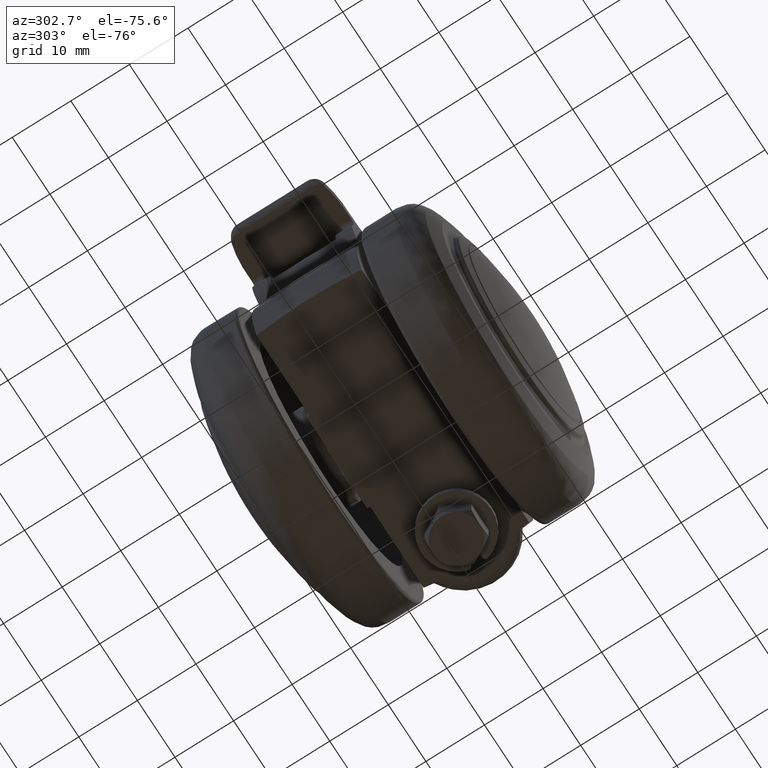
[diagram: clean part render]
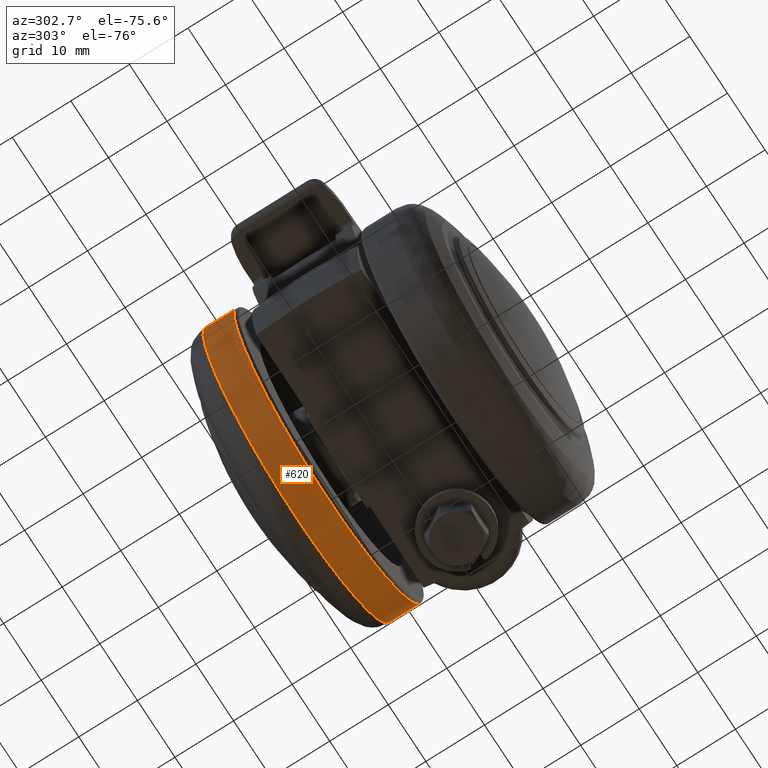
[diagram: same view with one face highlighted and labeled with its STEP entity id]
A machine part, auxiliary view. The second image highlights one B-rep face of the part: STEP entity #620.
In plain terms, the highlighted face is a freeform B-spline surface patch.
Its self-contained STEP definition (entity closure, byte-faithful):
#420=CARTESIAN_POINT('',(-24.456277193517327,-10.866386224979012,5.185605638095166));
#421=CARTESIAN_POINT('',(-27.125405001298383,-10.866386224979012,-7.402495750192665));
#422=CARTESIAN_POINT('',(-18.431933420253088,-10.866386224979010,-16.889755190391501));
#423=CARTESIAN_POINT('',(-1.542178229861583,-10.866386224979012,-35.321688610644600));
#424=CARTESIAN_POINT('',(16.889755190391512,-10.866386224979010,-18.431933420253088));
#425=CARTESIAN_POINT('',(35.321688610644600,-10.866386224979012,-1.542178229861581));
#426=CARTESIAN_POINT('',(18.431933420253088,-10.866386224979010,16.889755190391512));
#427=CARTESIAN_POINT('',(1.542178229861583,-10.866386224979012,35.321688610644600));
#428=CARTESIAN_POINT('',(-16.889755190391512,-10.866386224979010,18.431933420253099));
#429=CARTESIAN_POINT('',(-24.456277193517327,-16.481505119420238,5.185605638095166));
#430=CARTESIAN_POINT('',(-27.125405001298383,-16.481505119420234,-7.402495750192665));
#431=CARTESIAN_POINT('',(-18.431933420253088,-16.481505119420230,-16.889755190391501));
#432=CARTESIAN_POINT('',(-1.542178229861583,-16.481505119420238,-35.321688610644600));
#433=CARTESIAN_POINT('',(16.889755190391512,-16.481505119420230,-18.431933420253088));
#434=CARTESIAN_POINT('',(35.321688610644600,-16.481505119420238,-1.542178229861581));
#435=CARTESIAN_POINT('',(18.431933420253088,-16.481505119420230,16.889755190391512));
#436=CARTESIAN_POINT('',(1.542178229861583,-16.481505119420238,35.321688610644600));
#437=CARTESIAN_POINT('',(-16.889755190391512,-16.481505119420230,18.431933420253099));
#445=(BOUNDED_SURFACE()B_SPLINE_SURFACE(2,1,((#420,#429),(#421,#430),(#422,#431),(#423,#432),(#424,#433),(#425,#434),(#426,#435),(#427,#436),(#428,#437)),.UNSPECIFIED.,.F.,.F.,.U.)B_SPLINE_SURFACE_WITH_KNOTS((3,2,2,2,3),(2,2),(0.0,24.852813742385699,66.274169979695202,107.695526217004700,149.116882454314210),(0.0,5.615118894441225),.UNSPECIFIED.)GEOMETRIC_REPRESENTATION_ITEM()RATIONAL_B_SPLINE_SURFACE(((0.859411254969543,0.859411254969543),(0.824264068711928,0.824264068711928),(1.0,1.0),(0.707106781186548,0.707106781186548),(1.0,1.0),(0.707106781186548,0.707106781186548),(1.0,1.0),(0.707106781186548,0.707106781186548),(1.0,1.0)))REPRESENTATION_ITEM('')SURFACE());
#446=CARTESIAN_POINT('',(-24.456279230578431,-10.999999999984270,5.185596030918193));
#447=VERTEX_POINT('',#446);
#448=CARTESIAN_POINT('',(-24.998026105095381,-10.999999999980590,0.314150997085621));
#449=VERTEX_POINT('',#448);
#450=CARTESIAN_POINT('',(-24.456279230578424,-10.999999999984267,5.185596030918193));
#451=CARTESIAN_POINT('',(-24.967080987086984,-10.999999999982521,2.776555620883773));
#452=CARTESIAN_POINT('',(-24.998026105095381,-10.999999999980584,0.314150997085621));
#460=(BOUNDED_CURVE()B_SPLINE_CURVE(2,(#450,#451,#452),.UNSPECIFIED.,.F.,.U.)B_SPLINE_CURVE_WITH_KNOTS((3,3),(0.714472189737189,0.747784295921702),.UNSPECIFIED.)CURVE()GEOMETRIC_REPRESENTATION_ITEM()RATIONAL_B_SPLINE_CURVE((0.928583473768771,0.956518523811881,0.994854295643953))REPRESENTATION_ITEM(''));
#461=EDGE_CURVE('',#447,#449,#460,.T.);
#462=ORIENTED_EDGE('',*,*,#461,.T.);
#463=CARTESIAN_POINT('',(0.0,-11.0,-25.0));
#464=VERTEX_POINT('',#463);
#465=CARTESIAN_POINT('',(-24.998026105095377,-10.999999999980590,0.314150997085621));
#466=CARTESIAN_POINT('',(-25.0,-10.999999999999996,0.157081699799057));
#467=CARTESIAN_POINT('',(-25.0,-11.0,1.789254E-015));
#468=CARTESIAN_POINT('',(-25.000000000000004,-11.0,-25.000000000000004));
#469=CARTESIAN_POINT('',(0.0,-11.0,-25.0));
#477=(BOUNDED_CURVE()B_SPLINE_CURVE(2,(#465,#466,#467,#468,#469),.UNSPECIFIED.,.F.,.U.)B_SPLINE_CURVE_WITH_KNOTS((3,2,3),(0.747784295921703,0.750000000000000,1.0),.UNSPECIFIED.)CURVE()GEOMETRIC_REPRESENTATION_ITEM()RATIONAL_B_SPLINE_CURVE((0.994854295643954,0.997404141202278,1.0,0.707106781186547,1.0))REPRESENTATION_ITEM(''));
#478=EDGE_CURVE('',#449,#464,#477,.T.);
#479=ORIENTED_EDGE('',*,*,#478,.T.);
#480=CARTESIAN_POINT('',(24.939141846009090,-10.999999999991950,-1.743331289410664));
#481=VERTEX_POINT('',#480);
#482=CARTESIAN_POINT('',(0.0,-11.0,-25.0));
#483=CARTESIAN_POINT('',(23.313421181619347,-10.999999999999998,-25.0));
#484=CARTESIAN_POINT('',(24.939141846009086,-10.999999999991946,-1.743331289410665));
#492=(BOUNDED_CURVE()B_SPLINE_CURVE(2,(#482,#483,#484),.UNSPECIFIED.,.F.,.U.)B_SPLINE_CURVE_WITH_KNOTS((3,3),(0.0,0.237833686534795),.UNSPECIFIED.)CURVE()GEOMETRIC_REPRESENTATION_ITEM()RATIONAL_B_SPLINE_CURVE((1.0,0.721360504034217,0.972879876386349))REPRESENTATION_ITEM(''));
#493=EDGE_CURVE('',#464,#481,#492,.T.);
#494=ORIENTED_EDGE('',*,*,#493,.T.);
#495=CARTESIAN_POINT('',(0.0,-11.0,25.0));
#496=VERTEX_POINT('',#495);
#497=CARTESIAN_POINT('',(24.939141846009090,-10.999999999991950,-1.743331289410664));
#498=CARTESIAN_POINT('',(25.000000000000007,-11.000000000000004,-0.872727896892503));
#499=CARTESIAN_POINT('',(25.0,-11.0,1.789254E-015));
#500=CARTESIAN_POINT('',(25.000000000000004,-11.0,25.000000000000004));
#501=CARTESIAN_POINT('',(0.0,-11.0,25.0));
#509=(BOUNDED_CURVE()B_SPLINE_CURVE(2,(#497,#498,#499,#500,#501),.UNSPECIFIED.,.F.,.U.)B_SPLINE_CURVE_WITH_KNOTS((3,2,3),(0.237833686534795,0.250000000000000,0.500000000000000),.UNSPECIFIED.)CURVE()GEOMETRIC_REPRESENTATION_ITEM()RATIONAL_B_SPLINE_CURVE((0.972879876386348,0.985746277152331,1.0,0.707106781186547,1.0))REPRESENTATION_ITEM(''));
#510=EDGE_CURVE('',#481,#496,#509,.T.);
#511=ORIENTED_EDGE('',*,*,#510,.T.);
#512=CARTESIAN_POINT('',(-16.889753796944401,-10.999999999994831,18.431934697111689));
#513=VERTEX_POINT('',#512);
#514=CARTESIAN_POINT('',(0.0,-11.0,25.0));
#515=CARTESIAN_POINT('',(-9.721967208421050,-11.0,25.000000000000004));
#516=CARTESIAN_POINT('',(-16.889753796944404,-10.999999999994825,18.431934697111689));
#524=(BOUNDED_CURVE()B_SPLINE_CURVE(2,(#514,#515,#516),.UNSPECIFIED.,.F.,.U.)B_SPLINE_CURVE_WITH_KNOTS((3,3),(0.500000000000000,0.618415197671539),.UNSPECIFIED.)CURVE()GEOMETRIC_REPRESENTATION_ITEM()RATIONAL_B_SPLINE_CURVE((1.0,0.861267966390207,0.853959782246640))REPRESENTATION_ITEM(''));
#525=EDGE_CURVE('',#496,#513,#524,.T.);
#526=ORIENTED_EDGE('',*,*,#525,.T.);
#527=CARTESIAN_POINT('',(-16.889753813936270,-16.344550999999999,18.431934681541762));
#528=VERTEX_POINT('',#527);
#529=CARTESIAN_POINT('',(-16.889753796944401,-10.999999999994831,18.431934697111689));
#530=CARTESIAN_POINT('',(-16.889753813936270,-16.344550999999999,18.431934681541762));
#531=QUASI_UNIFORM_CURVE('',1,(#529,#530),.UNSPECIFIED.,.F.,.U.);
#532=EDGE_CURVE('',#513,#528,#531,.T.);
#533=ORIENTED_EDGE('',*,*,#532,.T.);
#534=CARTESIAN_POINT('',(0.0,-16.344550999999999,25.0));
#535=VERTEX_POINT('',#534);
#536=CARTESIAN_POINT('',(0.0,-16.344550999999999,25.0));
#537=CARTESIAN_POINT('',(-9.721967221687173,-16.344550999999992,25.000000000000004));
#538=CARTESIAN_POINT('',(-16.889753813936270,-16.344550999999999,18.431934681541751));
#546=(BOUNDED_CURVE()B_SPLINE_CURVE(2,(#536,#537,#538),.UNSPECIFIED.,.F.,.U.)B_SPLINE_CURVE_WITH_KNOTS((3,3),(0.500000000000000,0.618415197810706),.UNSPECIFIED.)CURVE()GEOMETRIC_REPRESENTATION_ITEM()RATIONAL_B_SPLINE_CURVE((1.0,0.861267966227163,0.853959782229462))REPRESENTATION_ITEM(''));
#547=EDGE_CURVE('',#535,#528,#546,.T.);
#548=ORIENTED_EDGE('',*,*,#547,.F.);
#549=CARTESIAN_POINT('',(11.084080773140300,-16.344551000042120,22.408550899478119));
#550=VERTEX_POINT('',#549);
#551=CARTESIAN_POINT('',(11.084080773140304,-16.344551000042117,22.408550899478119));
#552=CARTESIAN_POINT('',(5.844979736167374,-16.344551000000006,25.000000000000007));
#553=CARTESIAN_POINT('',(0.0,-16.344550999999999,25.0));
#561=(BOUNDED_CURVE()B_SPLINE_CURVE(2,(#551,#552,#553),.UNSPECIFIED.,.F.,.U.)B_SPLINE_CURVE_WITH_KNOTS((3,3),(0.424637790836527,0.500000000000000),.UNSPECIFIED.)CURVE()GEOMETRIC_REPRESENTATION_ITEM()RATIONAL_B_SPLINE_CURVE((0.876646594193984,0.911707679924871,1.0))REPRESENTATION_ITEM(''));
#562=EDGE_CURVE('',#550,#535,#561,.T.);
#563=ORIENTED_EDGE('',*,*,#562,.F.);
#564=CARTESIAN_POINT('',(23.005796184146028,-16.344551000043619,-9.784341670931774));
#565=VERTEX_POINT('',#564);
#566=CARTESIAN_POINT('',(23.005796184146028,-16.344551000043623,-9.784341670931774));
#567=CARTESIAN_POINT('',(24.999999999999996,-16.344550999999996,-5.095395998329954));
#568=CARTESIAN_POINT('',(25.0,-16.344550999999999,1.789254E-015));
#569=CARTESIAN_POINT('',(24.999999999999993,-16.344550999999992,15.525233301881846));
#570=CARTESIAN_POINT('',(11.084080773140304,-16.344551000042113,22.408550899478112));
#578=(BOUNDED_CURVE()B_SPLINE_CURVE(2,(#566,#567,#568,#569,#570),.UNSPECIFIED.,.F.,.U.)B_SPLINE_CURVE_WITH_KNOTS((3,2,3),(0.183550134662986,0.250000000000000,0.424637790836528),.UNSPECIFIED.)CURVE()GEOMETRIC_REPRESENTATION_ITEM()RATIONAL_B_SPLINE_CURVE((0.885683713610757,0.922149140206886,1.0,0.795399101261676,0.876646594193984))REPRESENTATION_ITEM(''));
#579=EDGE_CURVE('',#565,#550,#578,.T.);
#580=ORIENTED_EDGE('',*,*,#579,.F.);
#581=CARTESIAN_POINT('',(0.0,-16.344550999999999,-25.0));
#582=VERTEX_POINT('',#581);
#583=CARTESIAN_POINT('',(0.0,-16.344550999999999,-25.0));
#584=CARTESIAN_POINT('',(16.534592203716628,-16.344550999999996,-24.999999999999993));
#585=CARTESIAN_POINT('',(23.005796184146028,-16.344551000043623,-9.784341670931774));
#593=(BOUNDED_CURVE()B_SPLINE_CURVE(2,(#583,#584,#585),.UNSPECIFIED.,.F.,.U.)B_SPLINE_CURVE_WITH_KNOTS((3,3),(0.0,0.183550134662986),.UNSPECIFIED.)CURVE()GEOMETRIC_REPRESENTATION_ITEM()RATIONAL_B_SPLINE_CURVE((1.0,0.784957640979662,0.885683713610757))REPRESENTATION_ITEM(''));
#594=EDGE_CURVE('',#582,#565,#593,.T.);
#595=ORIENTED_EDGE('',*,*,#594,.F.);
#596=CARTESIAN_POINT('',(-24.456279329416759,-16.344550999999999,5.185595564777143));
#597=VERTEX_POINT('',#596);
#598=CARTESIAN_POINT('',(-24.456279329416759,-16.344550999999996,5.185595564777143));
#599=CARTESIAN_POINT('',(-25.000000000000004,-16.344550999999999,2.621302913952202));
#600=CARTESIAN_POINT('',(-25.0,-16.344550999999999,1.789254E-015));
#601=CARTESIAN_POINT('',(-25.000000000000004,-16.344550999999992,-25.000000000000004));
#602=CARTESIAN_POINT('',(0.0,-16.344550999999999,-25.0));
#610=(BOUNDED_CURVE()B_SPLINE_CURVE(2,(#598,#599,#600,#601,#602),.UNSPECIFIED.,.F.,.U.)B_SPLINE_CURVE_WITH_KNOTS((3,2,3),(0.714472192865964,0.750000000000000,1.0),.UNSPECIFIED.)CURVE()GEOMETRIC_REPRESENTATION_ITEM()RATIONAL_B_SPLINE_CURVE((0.928583479016261,0.958376584844514,1.0,0.707106781186547,1.0))REPRESENTATION_ITEM(''));
#611=EDGE_CURVE('',#597,#582,#610,.T.);
#612=ORIENTED_EDGE('',*,*,#611,.F.);
#613=CARTESIAN_POINT('',(-24.456279230578431,-10.999999999984270,5.185596030918193));
#614=CARTESIAN_POINT('',(-24.456279329416759,-16.344550999999999,5.185595564777143));
#615=QUASI_UNIFORM_CURVE('',1,(#613,#614),.UNSPECIFIED.,.F.,.U.);
#616=EDGE_CURVE('',#447,#597,#615,.T.);
#617=ORIENTED_EDGE('',*,*,#616,.F.);
#618=EDGE_LOOP('',(#462,#479,#494,#511,#526,#533,#548,#563,#580,#595,#612,#617));
#619=FACE_OUTER_BOUND('',#618,.T.);
#620=ADVANCED_FACE('',(#619),#445,.T.);